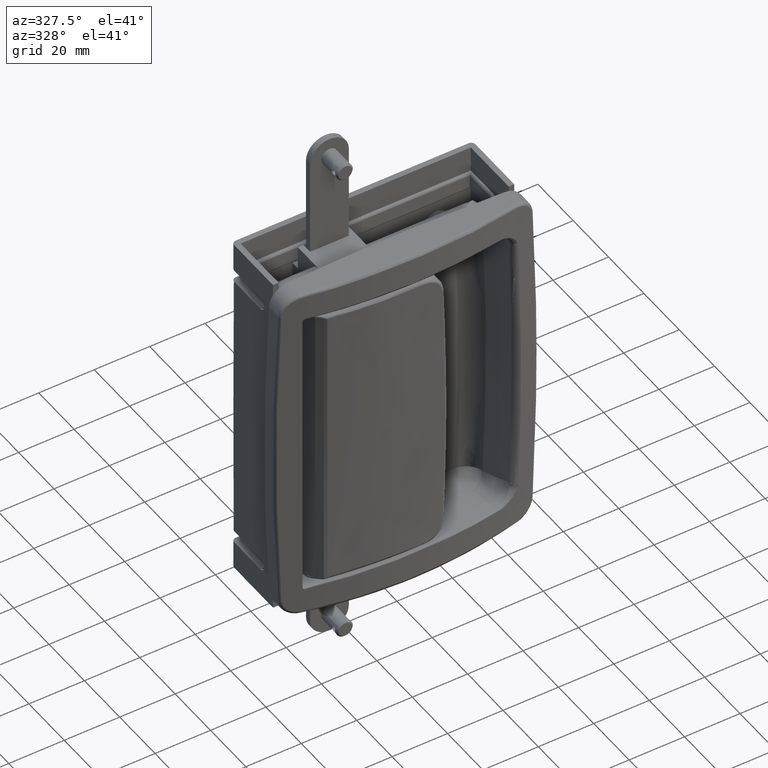
[diagram: clean part render]
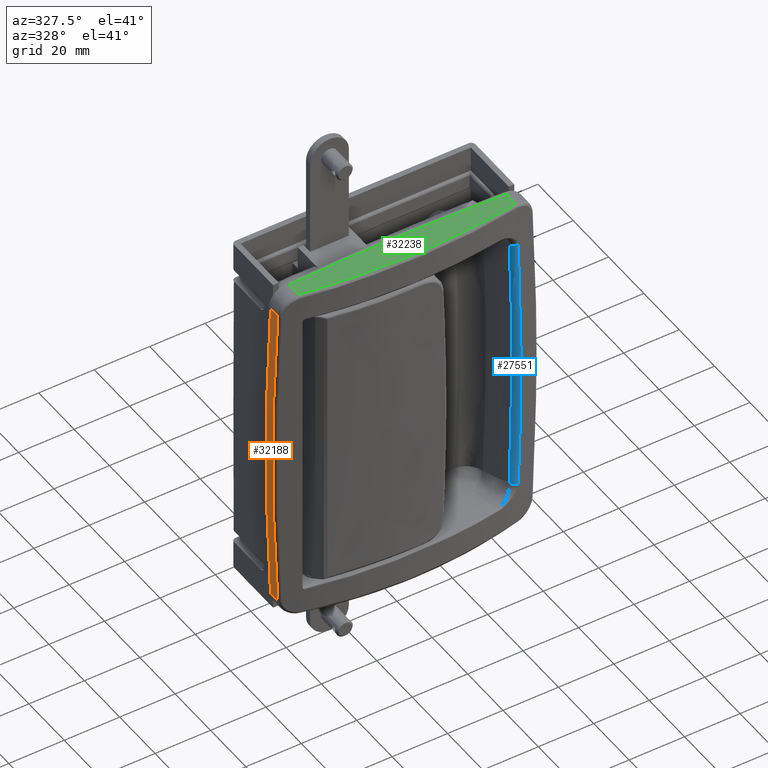
[diagram: same view with three faces highlighted in distinct colors, each labeled with its STEP entity id]
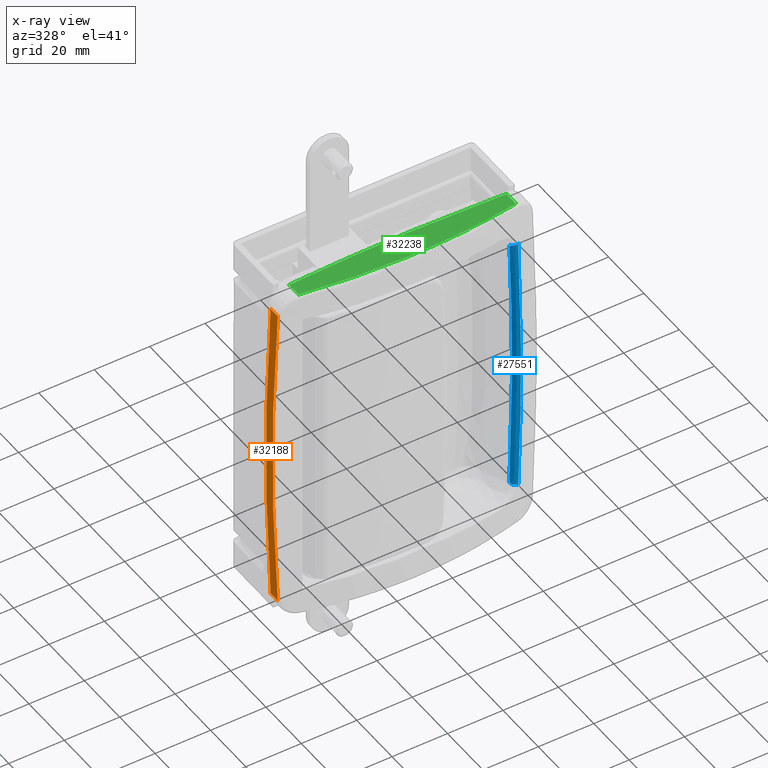
[diagram: x-ray of the same camera — body ghosted, the three highlighted faces saturated]
A machine part, auxiliary view with three faces highlighted in distinct colors.
The next image is the same camera in x-ray (body ghosted, the three faces saturated) — at least one of them is partly hidden behind the body in this view.
Their STEP definitions:

[orange] entity #32188 — the highlighted face is a freeform B-spline surface patch.
#28757=CARTESIAN_POINT('',(1.647853041229950,-4.130335608743320,57.384585585430813));
#28758=VERTEX_POINT('',#28757);
#28879=CARTESIAN_POINT('',(1.647853041230745,-4.130335608744095,-57.384585585462801));
#28880=VERTEX_POINT('',#28879);
#28904=CARTESIAN_POINT('',(1.647853041230745,-4.130335608744095,-57.384585585462801));
#28905=CARTESIAN_POINT('',(1.098115377213596,-3.996931836090278,-47.820487987888342));
#28906=CARTESIAN_POINT('',(0.274359340705273,-3.792165913784225,-28.692292792739419));
#28907=CARTESIAN_POINT('',(-0.137179670352454,-3.687916263347431,-1.603405E-011));
#28908=CARTESIAN_POINT('',(0.274359621406085,-3.792166506638543,28.692292792707299));
#28909=CARTESIAN_POINT('',(1.098115377212044,-3.996931836089890,47.820487987856438));
#28910=CARTESIAN_POINT('',(1.647853041229950,-4.130335608743320,57.384585585430813));
#28911=B_SPLINE_CURVE_WITH_KNOTS('',3,(#28904,#28905,#28906,#28907,#28908,#28909,#28910),.UNSPECIFIED.,.F.,.U.,(4,1,1,1,4),(0.0,0.250000000000000,0.500000000000000,0.750000000000000,1.0),.UNSPECIFIED.);
#28912=EDGE_CURVE('',#28880,#28758,#28911,.T.);
#31982=CARTESIAN_POINT('',(1.647853041230745,-3.197442E-011,-57.384585585462801));
#31983=VERTEX_POINT('',#31982);
#31997=CARTESIAN_POINT('',(1.647853041229950,-3.197442E-011,57.384585585430813));
#31998=VERTEX_POINT('',#31997);
#31999=CARTESIAN_POINT('',(1.647853041229950,-3.197442E-011,57.384585585430813));
#32000=CARTESIAN_POINT('',(-1.650572942873296,-3.197442E-011,-1.651029E-011));
#32001=CARTESIAN_POINT('',(1.647853041230745,-3.197442E-011,-57.384585585462801));
#32009=(BOUNDED_CURVE()B_SPLINE_CURVE(2,(#31999,#32000,#32001),.UNSPECIFIED.,.F.,.U.)CURVE()GEOMETRIC_REPRESENTATION_ITEM()QUASI_UNIFORM_CURVE()RATIONAL_B_SPLINE_CURVE((1.0,0.998352146958771,1.0))REPRESENTATION_ITEM(''));
#32010=EDGE_CURVE('',#31998,#31983,#32009,.T.);
#32155=CARTESIAN_POINT('',(1.647853041230745,-3.197442E-011,-57.384585585462801));
#32156=CARTESIAN_POINT('',(1.647853041230745,-4.130335608744095,-57.384585585462801));
#32157=QUASI_UNIFORM_CURVE('',1,(#32155,#32156),.UNSPECIFIED.,.F.,.U.);
#32158=EDGE_CURVE('',#31983,#28880,#32157,.T.);
#32164=CARTESIAN_POINT('',(1.992949741806251,0.103258390185829,-63.102516866906491));
#32165=CARTESIAN_POINT('',(1.992949741806251,-4.236175279858117,-63.102516866906491));
#32166=CARTESIAN_POINT('',(-1.997176086147345,0.103258390185829,0.003899571507137));
#32167=CARTESIAN_POINT('',(-1.997176086147345,-4.236175279858117,0.003899571507137));
#32168=CARTESIAN_POINT('',(1.993440936649494,0.103258390185829,63.110284950474515));
#32169=CARTESIAN_POINT('',(1.993440936649494,-4.236175279858117,63.110284950474515));
#32177=(BOUNDED_SURFACE()B_SPLINE_SURFACE(1,2,((#32164,#32166,#32168),(#32165,#32167,#32169)),.UNSPECIFIED.,.F.,.F.,.U.)B_SPLINE_SURFACE_WITH_KNOTS((2,2),(3,3),(0.0,4.339433670043945),(27.861812148475650,154.216537918662990),.UNSPECIFIED.)GEOMETRIC_REPRESENTATION_ITEM()RATIONAL_B_SPLINE_SURFACE(((0.998616423050299,0.995917771938214,0.997197671426531),(0.998616423050299,0.995917771938214,0.997197671426531)))REPRESENTATION_ITEM('')SURFACE());
#32178=ORIENTED_EDGE('',*,*,#32158,.T.);
#32179=ORIENTED_EDGE('',*,*,#28912,.T.);
#32180=CARTESIAN_POINT('',(1.647853041229950,-3.197442E-011,57.384585585430813));
#32181=CARTESIAN_POINT('',(1.647853041229950,-4.130335608743320,57.384585585430813));
#32182=QUASI_UNIFORM_CURVE('',1,(#32180,#32181),.UNSPECIFIED.,.F.,.U.);
#32183=EDGE_CURVE('',#31998,#28758,#32182,.T.);
#32184=ORIENTED_EDGE('',*,*,#32183,.F.);
#32185=ORIENTED_EDGE('',*,*,#32010,.T.);
#32186=EDGE_LOOP('',(#32178,#32179,#32184,#32185));
#32187=FACE_OUTER_BOUND('',#32186,.T.);
#32188=ADVANCED_FACE('',(#32187),#32177,.T.);

[blue] entity #27551 — the highlighted face is a freeform B-spline surface patch.
#27372=CARTESIAN_POINT('',(84.605871642919894,-4.943365430874120,-47.629475146254798));
#27373=VERTEX_POINT('',#27372);
#27401=CARTESIAN_POINT('',(86.913000136790401,-6.389771469008990,-48.486246136743503));
#27402=VERTEX_POINT('',#27401);
#27420=CARTESIAN_POINT('',(86.913000136790401,-6.389771469008990,-48.486246136743503));
#27421=CARTESIAN_POINT('',(86.782954932531354,-6.409425714938358,-48.443921992082871));
#27422=CARTESIAN_POINT('',(86.526463911703175,-6.448189557802727,-48.360445429741013));
#27423=CARTESIAN_POINT('',(86.135335708922852,-6.407688994442614,-48.275520554838216));
#27424=CARTESIAN_POINT('',(85.778773956813993,-6.303219637439924,-48.220368604997908));
#27425=CARTESIAN_POINT('',(85.495329145342026,-6.160154403522648,-48.188329103625350));
#27426=CARTESIAN_POINT('',(85.294180794747120,-6.019713762301856,-48.169228445321309));
#27427=CARTESIAN_POINT('',(85.126076821340263,-5.875708193332050,-48.157076033713878));
#27428=CARTESIAN_POINT('',(84.948129370458929,-5.684556907238781,-48.107996155194812));
#27429=CARTESIAN_POINT('',(84.768560320464047,-5.413748104851049,-48.008476737573119));
#27430=CARTESIAN_POINT('',(84.672489822052299,-5.182065643801112,-47.837703562401792));
#27431=CARTESIAN_POINT('',(84.627947021631940,-5.033533742658244,-47.697577280823772));
#27432=CARTESIAN_POINT('',(84.611893853663730,-4.967970092799375,-47.648053022808220));
#27433=CARTESIAN_POINT('',(84.605871642919894,-4.943365430874120,-47.629475146254798));
#27434=B_SPLINE_CURVE_WITH_KNOTS('',3,(#27420,#27421,#27422,#27423,#27424,#27425,#27426,#27427,#27428,#27429,#27430,#27431,#27432,#27433),.UNSPECIFIED.,.F.,.U.,(4,1,1,1,1,1,1,1,1,1,1,4),(0.000142186398656,0.129720170739054,0.255711598632856,0.374687157330421,0.481557828815168,0.554388598028883,0.605876942990231,0.689793863156316,0.803266246359228,0.921249519930620,0.970449995941400,0.999997520965856),.UNSPECIFIED.);
#27435=EDGE_CURVE('',#27402,#27373,#27434,.T.);
#27440=CARTESIAN_POINT('',(86.899843308725110,-6.392660783294285,49.068145158017607));
#27441=CARTESIAN_POINT('',(86.892765863330098,-6.394152042233658,49.067865691005835));
#27442=CARTESIAN_POINT('',(85.033517291599708,-6.785906538155498,48.994449562241520));
#27443=CARTESIAN_POINT('',(84.541986200252367,-4.949454477229211,48.972012532133796));
#27444=CARTESIAN_POINT('',(84.540170180346422,-4.942669487311592,48.971929635865344));
#27445=CARTESIAN_POINT('',(88.447883184035405,-6.068100487784277,16.374419589044809));
#27446=CARTESIAN_POINT('',(88.440777893014584,-6.069658397851609,16.374324033267627));
#27447=CARTESIAN_POINT('',(86.566513584247360,-6.480610634274060,16.349117918252468));
#27448=CARTESIAN_POINT('',(86.070605818665598,-4.628394059092978,16.342328325776570));
#27449=CARTESIAN_POINT('',(86.068781154742425,-4.621578935400250,16.342303343864007));
#27450=CARTESIAN_POINT('',(88.447498221027033,-6.068181005355831,-16.382563284468688));
#27451=CARTESIAN_POINT('',(88.440392938832403,-6.069738898509971,-16.382467677020610));
#27452=CARTESIAN_POINT('',(86.566132701096677,-6.480686291371291,-16.357247955484958));
#27453=CARTESIAN_POINT('',(86.070225693885121,-4.628473710265422,-16.350456067600451));
#27454=CARTESIAN_POINT('',(86.068401031056055,-4.621658594932931,-16.350431077218833));
#27455=CARTESIAN_POINT('',(86.899842048712983,-6.392661023188206,-49.068171445836427));
#27456=CARTESIAN_POINT('',(86.892764604652044,-6.394152281810290,-49.067891955220944));
#27457=CARTESIAN_POINT('',(85.033516367534574,-6.785906697715618,-48.994469625116857));
#27458=CARTESIAN_POINT('',(84.541984958241457,-4.949454714544788,-48.972038744839665));
#27459=CARTESIAN_POINT('',(84.540168937176333,-4.942669724972219,-48.971955871293225));
#27467=(BOUNDED_SURFACE()B_SPLINE_SURFACE(2,3,((#27440,#27445,#27450,#27455),(#27441,#27446,#27451,#27456),(#27442,#27447,#27452,#27457),(#27443,#27448,#27453,#27458),(#27444,#27449,#27454,#27459)),.UNSPECIFIED.,.F.,.F.,.U.)B_SPLINE_SURFACE_WITH_KNOTS((3,1,1,3),(4,4),(0.0,0.016916369738986,3.217269208506924,3.233683902502608),(0.0,98.194775911573700),.UNSPECIFIED.)GEOMETRIC_REPRESENTATION_ITEM()RATIONAL_B_SPLINE_SURFACE(((1.002895927610491,1.002927225487241,1.002927218432781,1.002895927675362),(1.001447963805246,1.001463612743620,1.001463609216390,1.001447963837681),(0.726064448457229,0.723103876826057,0.723104544131167,0.726064442320860),(1.001405022658328,1.001420207508195,1.001420204085570,1.001405022689802),(1.002810045316656,1.002840415016390,1.002840408171139,1.002810045379603)))REPRESENTATION_ITEM('')SURFACE());
#27468=CARTESIAN_POINT('',(86.913023108328701,-6.389840579438331,48.486076372476198));
#27469=VERTEX_POINT('',#27468);
#27470=CARTESIAN_POINT('',(84.610191489600993,-4.941702614984580,47.629531665624100));
#27471=VERTEX_POINT('',#27470);
#27472=CARTESIAN_POINT('',(86.913023108328701,-6.389840579438331,48.486076372476198));
#27473=CARTESIAN_POINT('',(86.819395310433777,-6.404907162998808,48.450686182981947));
#27474=CARTESIAN_POINT('',(86.626779343839402,-6.435902920893617,48.377879647843287));
#27475=CARTESIAN_POINT('',(86.314524734676709,-6.422423175642705,48.301713070286638));
#27476=CARTESIAN_POINT('',(86.005795617974542,-6.362822671425252,48.247901301639622));
#27477=CARTESIAN_POINT('',(85.747518596482834,-6.270489668221527,48.214851776433079));
#27478=CARTESIAN_POINT('',(85.550252822624202,-6.172962081297691,48.193625751043683));
#27479=CARTESIAN_POINT('',(85.406554160523555,-6.086849202706588,48.184863224371860));
#27480=CARTESIAN_POINT('',(85.293150876455968,-6.006245683686359,48.176053793958907));
#27481=CARTESIAN_POINT('',(85.189293455112903,-5.923598832997245,48.171816582140892));
#27482=CARTESIAN_POINT('',(85.079102660930019,-5.819364437481748,48.151065932157010));
#27483=CARTESIAN_POINT('',(84.956950970766741,-5.676409801911158,48.105170404145113));
#27484=CARTESIAN_POINT('',(84.838687550039694,-5.502127666020424,48.040318975549638));
#27485=CARTESIAN_POINT('',(84.744537367830489,-5.316385702949988,47.934363042402772));
#27486=CARTESIAN_POINT('',(84.685859936531912,-5.167134244292003,47.820068598722081));
#27487=CARTESIAN_POINT('',(84.649061092909221,-5.061122981516920,47.727962334916697));
#27488=CARTESIAN_POINT('',(84.628070734121806,-4.997210974754849,47.669713268242312));
#27489=CARTESIAN_POINT('',(84.615913720746704,-4.959468316773632,47.642388946263871));
#27490=CARTESIAN_POINT('',(84.610191489600993,-4.941702614984580,47.629531665624100));
#27491=B_SPLINE_CURVE_WITH_KNOTS('',3,(#27472,#27473,#27474,#27475,#27476,#27477,#27478,#27479,#27480,#27481,#27482,#27483,#27484,#27485,#27486,#27487,#27488,#27489,#27490),.UNSPECIFIED.,.F.,.U.,(4,1,1,1,1,1,1,1,1,1,1,1,1,1,1,1,4),(0.000066406264101,0.095285684629453,0.195956449105223,0.301001311142419,0.395047028409953,0.455470354894333,0.509268591386641,0.553088884157792,0.586910655475459,0.634447569700882,0.696953273340297,0.769146197900096,0.841474484435139,0.916054418807379,0.954555071971844,0.978611386941835,1.0),.UNSPECIFIED.);
#27492=EDGE_CURVE('',#27469,#27471,#27491,.T.);
#27493=ORIENTED_EDGE('',*,*,#27492,.T.);
#27494=CARTESIAN_POINT('',(84.605871642919894,-4.943365430874120,-47.629475146254798));
#27495=CARTESIAN_POINT('',(84.672894970003583,-4.929277878382006,-46.118332885114910));
#27496=CARTESIAN_POINT('',(84.806940349073727,-4.901103041408923,-43.096077111829587));
#27497=CARTESIAN_POINT('',(84.983081385446866,-4.864078060510661,-38.561636944207073));
#27498=CARTESIAN_POINT('',(85.140968260882374,-4.830887628461176,-34.026584043402551));
#27499=CARTESIAN_POINT('',(85.278809390541582,-4.801907711182017,-29.490913241631350));
#27500=CARTESIAN_POINT('',(85.397082097274733,-4.777037573153210,-24.954727304297158));
#27501=CARTESIAN_POINT('',(85.495656142605810,-4.756304207562302,-20.418100084844589));
#27502=CARTESIAN_POINT('',(85.574564456256695,-4.739700383524387,-15.881113190273210));
#27503=CARTESIAN_POINT('',(85.633796624358141,-4.727228040242316,-11.343846155641449));
#27504=CARTESIAN_POINT('',(85.673354221806676,-4.718886660063937,-6.806379075635364));
#27505=CARTESIAN_POINT('',(85.693235991317408,-4.714676382797371,-2.268791898026790));
#27506=CARTESIAN_POINT('',(85.693441795636375,-4.714597175236243,2.268835387290828));
#27507=CARTESIAN_POINT('',(85.673971629498396,-4.718649038776627,6.806422803512090));
#27508=CARTESIAN_POINT('',(85.634825619627350,-4.726832009417446,11.343890360714949));
#27509=CARTESIAN_POINT('',(85.576005012782545,-4.739145950141849,15.881158111070990));
#27510=CARTESIAN_POINT('',(85.497508223526296,-4.755591381397669,20.418145959808410));
#27511=CARTESIAN_POINT('',(85.399345655246890,-4.776166366760753,24.954774371756020));
#27512=CARTESIAN_POINT('',(85.281484367519880,-4.800878139958200,29.490961739770931));
#27513=CARTESIAN_POINT('',(85.144054588964281,-4.829699710404253,34.026634210242953));
#27514=CARTESIAN_POINT('',(84.986578983677859,-4.862731817127095,38.561689017549789));
#27515=CARTESIAN_POINT('',(84.810849135555458,-4.899598494291882,43.096131329328863));
#27516=CARTESIAN_POINT('',(84.677077796920003,-4.927667818838877,46.118388610740112));
#27517=CARTESIAN_POINT('',(84.610191489600993,-4.941702614984580,47.629531665624100));
#27518=B_SPLINE_CURVE_WITH_KNOTS('',3,(#27494,#27495,#27496,#27497,#27498,#27499,#27500,#27501,#27502,#27503,#27504,#27505,#27506,#27507,#27508,#27509,#27510,#27511,#27512,#27513,#27514,#27515,#27516,#27517),.UNSPECIFIED.,.F.,.U.,(4,1,1,1,1,1,1,1,1,1,1,1,1,1,1,1,1,1,1,1,1,4),(0.0,0.047622059327649,0.095243212660966,0.142863555489301,0.190483183305367,0.238102191604842,0.285720675886004,0.333338731649285,0.380956454396913,0.428573939632500,0.476191282860662,0.523808579586594,0.571425925315696,0.619043415553178,0.666661145803641,0.714279211570714,0.761897708356622,0.809516731661824,0.857136376984591,0.904756739820616,0.952377915662634,1.0),.UNSPECIFIED.);
#27519=EDGE_CURVE('',#27373,#27471,#27518,.T.);
#27520=ORIENTED_EDGE('',*,*,#27519,.F.);
#27521=ORIENTED_EDGE('',*,*,#27435,.F.);
#27522=CARTESIAN_POINT('',(86.913023108328701,-6.389840579438331,48.486076372476198));
#27523=CARTESIAN_POINT('',(86.983031256800231,-6.375052075943834,46.946898579708581));
#27524=CARTESIAN_POINT('',(87.123033796963725,-6.345477974933458,43.868845446531552));
#27525=CARTESIAN_POINT('',(87.306938744599620,-6.306361321573832,39.251011629688250));
#27526=CARTESIAN_POINT('',(87.471723997029883,-6.271169693701984,34.633249690084767));
#27527=CARTESIAN_POINT('',(87.615529008390126,-6.240328501856268,30.015468411828760));
#27528=CARTESIAN_POINT('',(87.738865356182174,-6.213785867121910,25.397692237409931));
#27529=CARTESIAN_POINT('',(87.841607405666807,-6.191609145401666,20.779914626427530));
#27530=CARTESIAN_POINT('',(87.923798435353135,-6.173825133935552,16.162137338543442));
#27531=CARTESIAN_POINT('',(87.985434657309284,-6.160462884049864,11.544359909837450));
#27532=CARTESIAN_POINT('',(88.026523057046148,-6.151542236127284,6.926582472176312));
#27533=CARTESIAN_POINT('',(88.047065887769449,-6.147076893423654,2.308804997608575));
#27534=CARTESIAN_POINT('',(88.047064794320406,-6.147073604739222,-2.308972498233349));
#27535=CARTESIAN_POINT('',(88.026519776671094,-6.151532369949367,-6.926750014240376));
#27536=CARTESIAN_POINT('',(87.985429189927601,-6.160446440003634,-11.544527534776501));
#27537=CARTESIAN_POINT('',(87.923790780828568,-6.173802111396670,-16.162305087795691));
#27538=CARTESIAN_POINT('',(87.841597563811931,-6.191579543495204,-20.780082541433099));
#27539=CARTESIAN_POINT('',(87.738853326753784,-6.213749684724121,-25.397860359611720));
#27540=CARTESIAN_POINT('',(87.615514791097809,-6.240285737589986,-30.015636782656848));
#27541=CARTESIAN_POINT('',(87.471707591510821,-6.271120345951877,-34.633418350995171));
#27542=CARTESIAN_POINT('',(87.306920150513207,-6.306305388429468,-39.251180622056303));
#27543=CARTESIAN_POINT('',(87.123013013678062,-6.345415454394025,-43.869014812033470));
#27544=CARTESIAN_POINT('',(86.983009014953169,-6.374985162240638,-46.947068206078733));
#27545=CARTESIAN_POINT('',(86.913000136790401,-6.389771469008990,-48.486246136743503));
#27546=B_SPLINE_CURVE_WITH_KNOTS('',3,(#27522,#27523,#27524,#27525,#27526,#27527,#27528,#27529,#27530,#27531,#27532,#27533,#27534,#27535,#27536,#27537,#27538,#27539,#27540,#27541,#27542,#27543,#27544,#27545),.UNSPECIFIED.,.F.,.U.,(4,1,1,1,1,1,1,1,1,1,1,1,1,1,1,1,1,1,1,1,1,4),(0.0,0.047650267292932,0.095291171186925,0.142923695766729,0.190548825636918,0.238167545860451,0.285780841898298,0.333389699548615,0.380995104885082,0.428598044195851,0.476199503922608,0.523800470599006,0.571401930789286,0.619004871027037,0.666610277753814,0.714219137257865,0.761832435612718,0.809451158616276,0.857076291729262,0.904708820014765,0.952349728076834,1.0),.UNSPECIFIED.);
#27547=EDGE_CURVE('',#27469,#27402,#27546,.T.);
#27548=ORIENTED_EDGE('',*,*,#27547,.F.);
#27549=EDGE_LOOP('',(#27493,#27520,#27521,#27548));
#27550=FACE_OUTER_BOUND('',#27549,.T.);
#27551=ADVANCED_FACE('',(#27550),#27467,.T.);

[green] entity #32238 — the highlighted face is a freeform B-spline surface patch.
#28745=CARTESIAN_POINT('',(8.270173018127320,-5.417433262252190,63.973311056194213));
#28746=VERTEX_POINT('',#28745);
#29017=CARTESIAN_POINT('',(86.729826981912510,-5.417433262239420,63.973311056002707));
#29018=VERTEX_POINT('',#29017);
#29029=CARTESIAN_POINT('',(8.270173018127320,-5.417433262252190,63.973311056194213));
#29030=CARTESIAN_POINT('',(15.110919177393381,-6.858017790399966,64.335587452050760));
#29031=CARTESIAN_POINT('',(25.498764026294079,-8.452518203003443,64.736570422070628));
#29032=CARTESIAN_POINT('',(43.988275137640279,-9.742883627992610,65.061069905666272));
#29033=CARTESIAN_POINT('',(63.378141598972363,-9.334383693793125,64.958340852944190));
#29034=CARTESIAN_POINT('',(79.084295463575401,-7.027516312500858,64.378212728299303));
#29035=CARTESIAN_POINT('',(86.729826981912510,-5.417433262239420,63.973311056002707));
#29036=B_SPLINE_CURVE_WITH_KNOTS('',3,(#29029,#29030,#29031,#29032,#29033,#29034,#29035),.UNSPECIFIED.,.F.,.U.,(4,1,1,1,4),(4.087440E-009,21.000477788899989,31.500718462489761,55.589497943128158,79.060621473323039),.UNSPECIFIED.);
#29037=EDGE_CURVE('',#28746,#29018,#29036,.T.);
#31923=CARTESIAN_POINT('',(86.729826981912510,-3.197442E-011,63.973311056002707));
#31924=VERTEX_POINT('',#31923);
#32012=CARTESIAN_POINT('',(8.270173018127320,-3.197442E-011,63.973311056194213));
#32013=VERTEX_POINT('',#32012);
#32026=CARTESIAN_POINT('',(86.729826981912510,-3.197442E-011,63.973311056002707));
#32027=CARTESIAN_POINT('',(47.500000000024464,-3.197442E-011,66.028096323224375));
#32028=CARTESIAN_POINT('',(8.270173018127320,-3.197442E-011,63.973311056194213));
#32036=(BOUNDED_CURVE()B_SPLINE_CURVE(2,(#32026,#32027,#32028),.UNSPECIFIED.,.F.,.U.)CURVE()GEOMETRIC_REPRESENTATION_ITEM()QUASI_UNIFORM_CURVE()RATIONAL_B_SPLINE_CURVE((1.0,0.998631081408697,1.0))REPRESENTATION_ITEM(''));
#32037=EDGE_CURVE('',#31924,#32013,#32036,.T.);
#32205=CARTESIAN_POINT('',(8.270173018127320,-3.197442E-011,63.973311056194213));
#32206=CARTESIAN_POINT('',(8.270173018127320,-5.417433262252190,63.973311056194213));
#32207=QUASI_UNIFORM_CURVE('',1,(#32205,#32206),.UNSPECIFIED.,.F.,.U.);
#32208=EDGE_CURVE('',#32013,#28746,#32207,.T.);
#32214=CARTESIAN_POINT('',(4.360119023430059,0.237500000502080,63.758272521144136));
#32215=CARTESIAN_POINT('',(4.360119023430059,-9.743437521941536,63.758272521144136));
#32216=CARTESIAN_POINT('',(47.502819472075196,0.237500000502080,66.243949181538895));
#32217=CARTESIAN_POINT('',(47.502819472075196,-9.743437521941534,66.243949181538895));
#32218=CARTESIAN_POINT('',(90.645501261649713,0.237500000502080,63.757948685748168));
#32219=CARTESIAN_POINT('',(90.645501261649713,-9.743437521941536,63.757948685748168));
#32227=(BOUNDED_SURFACE()B_SPLINE_SURFACE(1,2,((#32214,#32216,#32218),(#32215,#32217,#32219)),.UNSPECIFIED.,.F.,.F.,.U.)B_SPLINE_SURFACE_WITH_KNOTS((2,2),(3,3),(0.0,9.980937522443616),(15.798503844356540,102.170156510257700),.UNSPECIFIED.)GEOMETRIC_REPRESENTATION_ITEM()RATIONAL_B_SPLINE_SURFACE(((0.999009697370233,0.996605067699140,0.997506939753865),(0.999009697370233,0.996605067699140,0.997506939753865)))REPRESENTATION_ITEM('')SURFACE());
#32228=ORIENTED_EDGE('',*,*,#32208,.T.);
#32229=ORIENTED_EDGE('',*,*,#29037,.T.);
#32230=CARTESIAN_POINT('',(86.729826981912510,-3.197442E-011,63.973311056002707));
#32231=CARTESIAN_POINT('',(86.729826981912510,-5.417433262239420,63.973311056002707));
#32232=QUASI_UNIFORM_CURVE('',1,(#32230,#32231),.UNSPECIFIED.,.F.,.U.);
#32233=EDGE_CURVE('',#31924,#29018,#32232,.T.);
#32234=ORIENTED_EDGE('',*,*,#32233,.F.);
#32235=ORIENTED_EDGE('',*,*,#32037,.T.);
#32236=EDGE_LOOP('',(#32228,#32229,#32234,#32235));
#32237=FACE_OUTER_BOUND('',#32236,.T.);
#32238=ADVANCED_FACE('',(#32237),#32227,.T.);